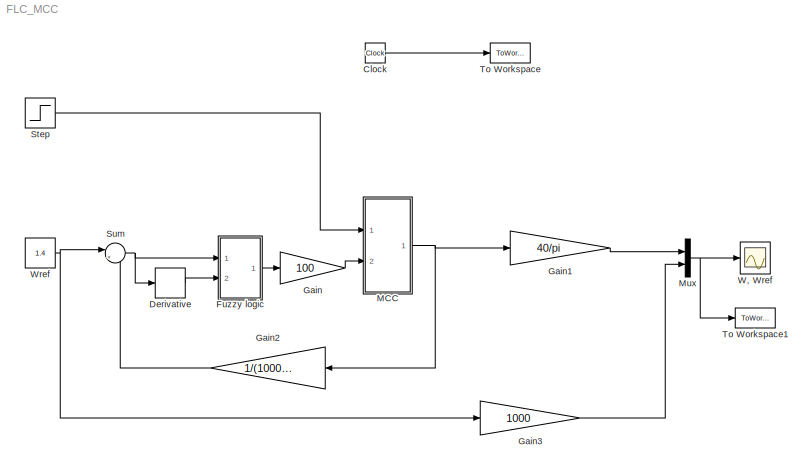
MODEL FLC_MCC
KIND model
BLOCK [Clock] Clock
  SID = 35
BLOCK [Derivative] Derivative
  SID = 3
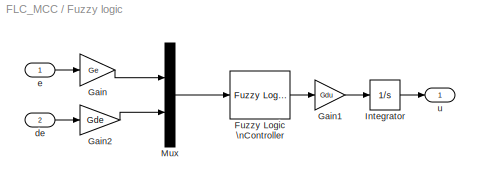
BLOCK [SubSystem] Fuzzy logic
  Ports = [2, 1]
  RequestExecContextInheritance = off
  SID = 19
BLOCK [Reference] Fuzzy logic/Fuzzy Logic \nController  REF=fuzblock/Fuzzy Logic \nController  (lib defined in mdl_858b3b3e7478)
  Ports = [1, 1]
  SID = 22
  SourceBlock = fuzblock/Fuzzy Logic \nController
  SourceType = FIS
  fis = 'Fuzzy_FIS.fis'
BLOCK [Gain] Fuzzy logic/Gain
  Gain = Ge
  OutDataTypeStr = Inherit: Inherit via internal rule
  ParamDataTypeStr = Inherit: Inherit via internal rule
  SID = 23
  SaturateOnIntegerOverflow = off
BLOCK [Gain] Fuzzy logic/Gain1
  Gain = Gdu
  OutDataTypeStr = Inherit: Inherit via internal rule
  ParamDataTypeStr = Inherit: Inherit via internal rule
  SID = 24
  SaturateOnIntegerOverflow = off
BLOCK [Gain] Fuzzy logic/Gain2
  Gain = Gde
  OutDataTypeStr = Inherit: Inherit via internal rule
  ParamDataTypeStr = Inherit: Inherit via internal rule
  SID = 25
  SaturateOnIntegerOverflow = off
BLOCK [Integrator] Fuzzy logic/Integrator
  Ports = [1, 1]
  SID = 26
BLOCK [Mux] Fuzzy logic/Mux
  DisplayOption = bar
  Inputs = 2
  Ports = [2, 1]
  SID = 27
BLOCK [Inport] Fuzzy logic/de
  IconDisplay = Port number
  Port = 2
  SID = 21
BLOCK [Inport] Fuzzy logic/e
  IconDisplay = Port number
  SID = 20
BLOCK [Outport] Fuzzy logic/u
  IconDisplay = Port number
  SID = 28
BLOCK [Gain] Gain
  Gain = 100
  OutDataTypeStr = Inherit: Inherit via internal rule
  ParamDataTypeStr = Inherit: Inherit via internal rule
  SID = 4
  SaturateOnIntegerOverflow = off
BLOCK [Gain] Gain1
  Gain = 40/pi
  OutDataTypeStr = Inherit: Inherit via internal rule
  ParamDataTypeStr = Inherit: Inherit via internal rule
  SID = 5
  SaturateOnIntegerOverflow = off
BLOCK [Gain] Gain2
  Gain = 1/(1000*pi/40)
  OutDataTypeStr = Inherit: Inherit via internal rule
  ParamDataTypeStr = Inherit: Inherit via internal rule
  SID = 6
  SaturateOnIntegerOverflow = off
BLOCK [Gain] Gain3
  Gain = 1000
  OutDataTypeStr = Inherit: Inherit via internal rule
  ParamDataTypeStr = Inherit: Inherit via internal rule
  SID = 31
  SaturateOnIntegerOverflow = off
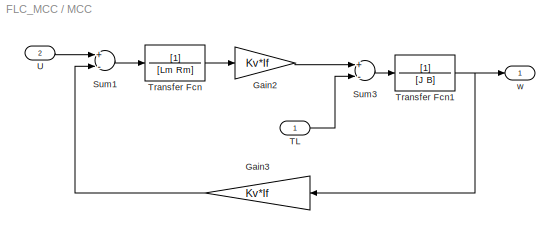
BLOCK [SubSystem] MCC
  Ports = [2, 1]
  RequestExecContextInheritance = off
  SID = 9
BLOCK [Gain] MCC/Gain2
  Gain = Kv*If
  OutDataTypeStr = Inherit: Inherit via internal rule
  ParamDataTypeStr = Inherit: Inherit via internal rule
  SID = 12
  SaturateOnIntegerOverflow = off
BLOCK [Gain] MCC/Gain3
  Gain = Kv*If
  OutDataTypeStr = Inherit: Inherit via internal rule
  ParamDataTypeStr = Inherit: Inherit via internal rule
  SID = 13
  SaturateOnIntegerOverflow = off
BLOCK [Sum] MCC/Sum1
  InputSameDT = off
  Inputs = +-
  OutDataTypeStr = Inherit: Inherit via internal rule
  Ports = [2, 1]
  SID = 38
  SaturateOnIntegerOverflow = off
BLOCK [Sum] MCC/Sum3
  InputSameDT = off
  Inputs = +-
  OutDataTypeStr = Inherit: Inherit via internal rule
  Ports = [2, 1]
  SID = 37
  SaturateOnIntegerOverflow = off
BLOCK [Inport] MCC/TL
  IconDisplay = Port number
  SID = 10
BLOCK [TransferFcn] MCC/Transfer Fcn
  Denominator = [Lm Rm]
  SID = 16
BLOCK [TransferFcn] MCC/Transfer Fcn1
  Denominator = [J B]
  SID = 17
BLOCK [Inport] MCC/U
  IconDisplay = Port number
  Port = 2
  SID = 11
BLOCK [Outport] MCC/w
  IconDisplay = Port number
  SID = 18
BLOCK [Mux] Mux
  DisplayOption = bar
  Inputs = 2
  Ports = [2, 1]
  SID = 30
BLOCK [Step] Step
  After = 12
  Before = 10
  SID = 33
  SampleTime = 0
BLOCK [Sum] Sum
  IconShape = round
  InputSameDT = off
  Inputs = |+-
  OutDataTypeStr = Inherit: Inherit via internal rule
  Ports = [2, 1]
  SID = 29
  SaturateOnIntegerOverflow = off
BLOCK [ToWorkspace] To Workspace
  MaxDataPoints = inf
  Ports = [1]
  SID = 34
  SampleTime = -1
  VariableName = t
BLOCK [ToWorkspace] To Workspace1
  MaxDataPoints = inf
  Ports = [1]
  SID = 36
  SampleTime = -1
  VariableName = data
BLOCK [Scope] W, Wref
  DataFormat = StructureWithTime
  Floating = off
  LimitDataPoints = off
  NumInputPorts = 1
  Ports = [1]
  SID = 7
  SampleTime = 0
  YMax = 1500
  YMin = 0
  ZoomMode = xonly
BLOCK [Constant] Wref
  SID = 2
  Value = 1.4
LINE Clock:1 -> To Workspace:1
LINE Derivative:1 -> Fuzzy logic:2
LINE Fuzzy logic/Fuzzy Logic \nController:1 -> Fuzzy logic/Gain1:1
LINE Fuzzy logic/Gain1:1 -> Fuzzy logic/Integrator:1
LINE Fuzzy logic/Gain2:1 -> Fuzzy logic/Mux:2
LINE Fuzzy logic/Gain:1 -> Fuzzy logic/Mux:1
LINE Fuzzy logic/Integrator:1 -> Fuzzy logic/u:1
LINE Fuzzy logic/Mux:1 -> Fuzzy logic/Fuzzy Logic \nController:1
LINE Fuzzy logic/de:1 -> Fuzzy logic/Gain2:1
LINE Fuzzy logic/e:1 -> Fuzzy logic/Gain:1
LINE Fuzzy logic:1 -> Gain:1
LINE Gain1:1 -> Mux:1
LINE Gain2:1 -> Sum:2
LINE Gain3:1 -> Mux:2
LINE Gain:1 -> MCC:2
LINE MCC/Gain2:1 -> MCC/Sum3:1
LINE MCC/Gain3:1 -> MCC/Sum1:2
LINE MCC/Sum1:1 -> MCC/Transfer Fcn:1
LINE MCC/Sum3:1 -> MCC/Transfer Fcn1:1
LINE MCC/TL:1 -> MCC/Sum3:2
NET MCC/Transfer Fcn1:1 -> MCC/Gain3:1, MCC/w:1
LINE MCC/Transfer Fcn:1 -> MCC/Gain2:1
LINE MCC/U:1 -> MCC/Sum1:1
NET MCC:1 -> Gain1:1, Gain2:1
NET Mux:1 -> To Workspace1:1, W, Wref:1
LINE Step:1 -> MCC:1
NET Sum:1 -> Derivative:1, Fuzzy logic:1
NET Wref:1 -> Gain3:1, Sum:1
note: NET lines group one-source signal fan-out (src -> all destinations, sorted); 1:1 wires keep LINE
